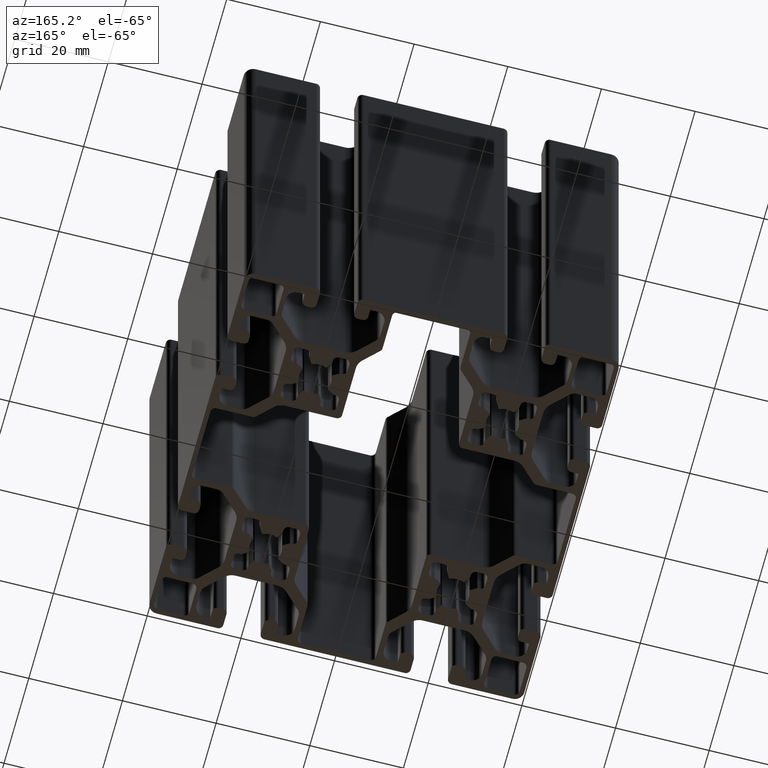
[diagram: clean part render]
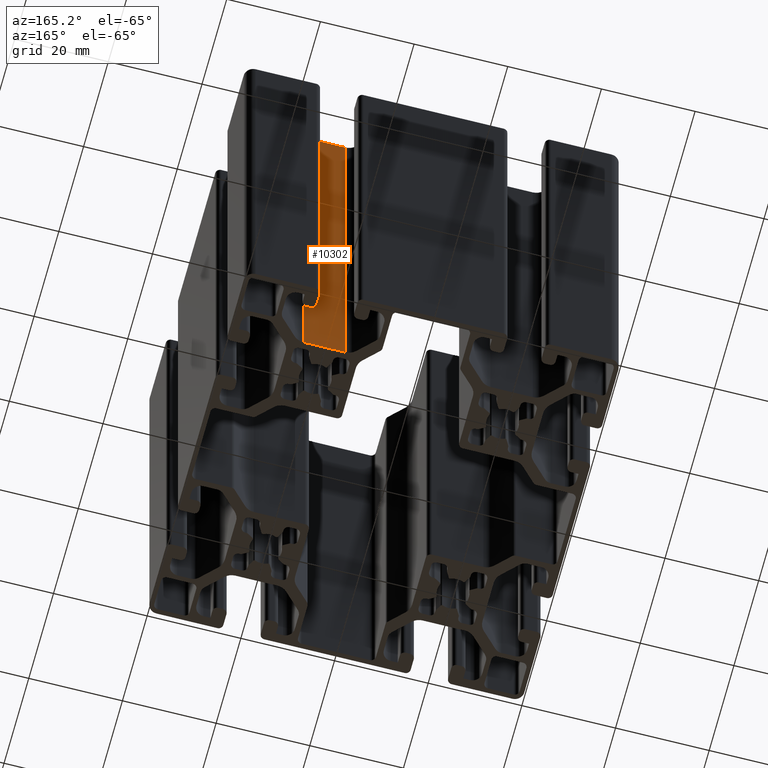
[diagram: same view with one face highlighted and labeled with its STEP entity id]
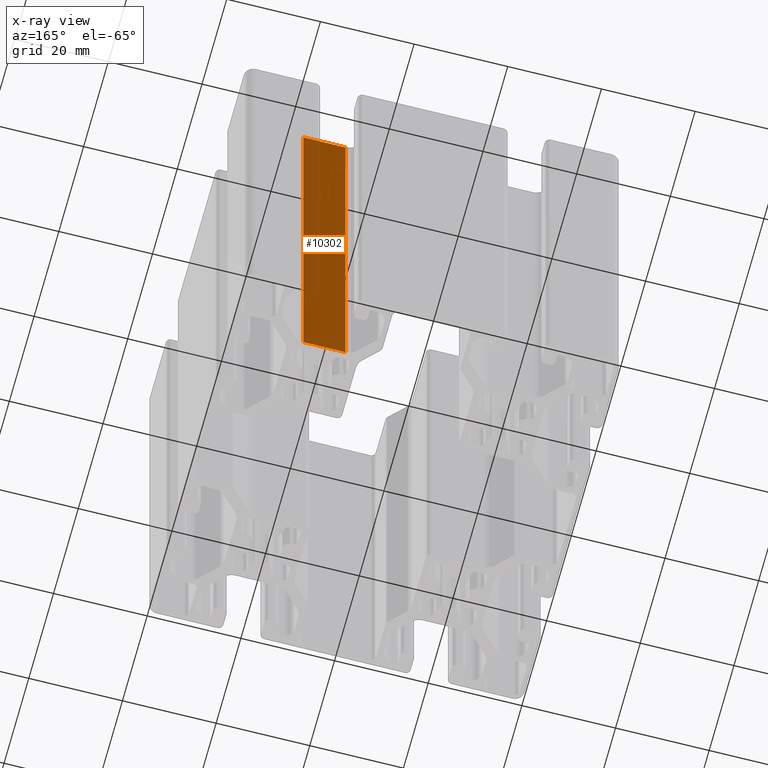
[diagram: x-ray of the same camera — body ghosted, the highlighted face saturated]
A machine part, auxiliary view. The second image highlights one B-rep face of the part: STEP entity #10302.
The next image is the same camera in x-ray: the body ghosted, the highlighted face saturated — about 32% of this face is hidden behind the body in this view.
In plain terms, the highlighted planar face has unit normal (0, -1, 0).
Its self-contained STEP definition (entity closure, byte-faithful):
#1078=FACE_OUTER_BOUND('',#1608,.T.);
#1608=EDGE_LOOP('',(#7563,#7564,#7565,#7566));
#2399=LINE('',#16267,#3439);
#2400=LINE('',#16270,#3440);
#2401=LINE('',#16272,#3441);
#2402=LINE('',#16273,#3442);
#3439=VECTOR('',#13055,100.);
#3440=VECTOR('',#13058,8.97918471982869);
#3441=VECTOR('',#13059,8.97918471982869);
#3442=VECTOR('',#13060,100.);
#4479=VERTEX_POINT('',#16263);
#4480=VERTEX_POINT('',#16265);
#4481=VERTEX_POINT('',#16269);
#4482=VERTEX_POINT('',#16271);
#5757=EDGE_CURVE('',#4480,#4479,#2399,.T.);
#5758=EDGE_CURVE('',#4479,#4481,#2400,.T.);
#5759=EDGE_CURVE('',#4482,#4480,#2401,.T.);
#5760=EDGE_CURVE('',#4482,#4481,#2402,.T.);
#7563=ORIENTED_EDGE('',*,*,#5758,.F.);
#7564=ORIENTED_EDGE('',*,*,#5757,.F.);
#7565=ORIENTED_EDGE('',*,*,#5759,.F.);
#7566=ORIENTED_EDGE('',*,*,#5760,.T.);
#9933=PLANE('',#11056);
#10302=ADVANCED_FACE('',(#1078),#9933,.F.);
#11056=AXIS2_PLACEMENT_3D('',#16268,#13056,#13057);
#13055=DIRECTION('',(0.,0.,1.));
#13056=DIRECTION('center_axis',(9.8915263179603E-16,-1.,0.));
#13057=DIRECTION('ref_axis',(0.,0.,-1.));
#13058=DIRECTION('',(-1.,-9.8915263179603E-16,0.));
#13059=DIRECTION('',(1.,9.8915263179603E-16,0.));
#13060=DIRECTION('',(0.,0.,1.));
#16263=CARTESIAN_POINT('',(24.4895923599144,27.5,100.));
#16265=CARTESIAN_POINT('',(24.4895923599144,27.5,0.));
#16267=CARTESIAN_POINT('',(24.4895923599144,27.5,0.));
#16268=CARTESIAN_POINT('Origin',(24.4895923599144,27.5,0.));
#16269=CARTESIAN_POINT('',(15.5104076400857,27.5,100.));
#16270=CARTESIAN_POINT('',(12.2447961799572,27.5,100.));
#16271=CARTESIAN_POINT('',(15.5104076400857,27.5,0.));
#16272=CARTESIAN_POINT('',(12.2447961799572,27.5,0.));
#16273=CARTESIAN_POINT('',(15.5104076400857,27.5,0.));